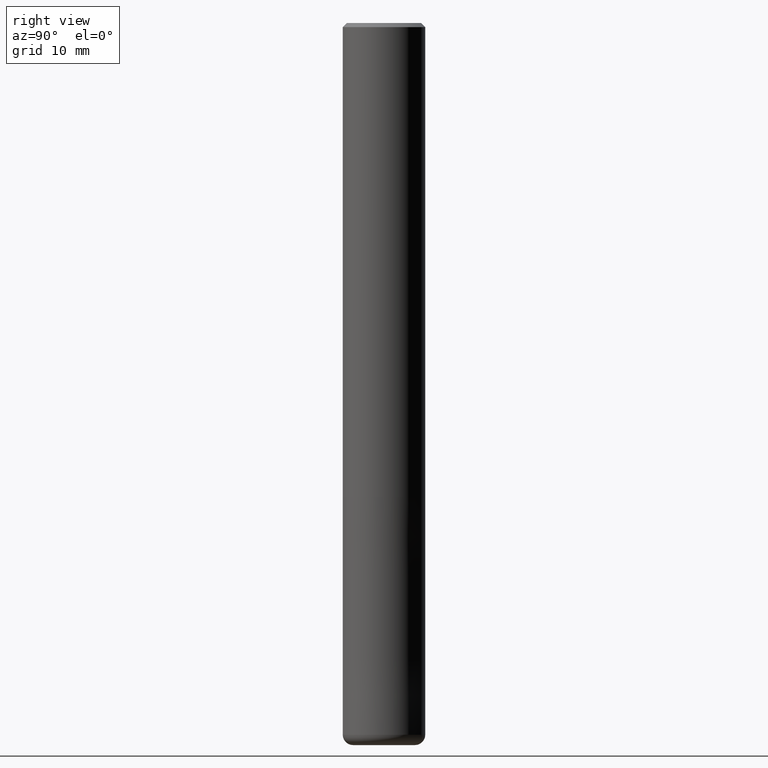
[diagram: clean part render]
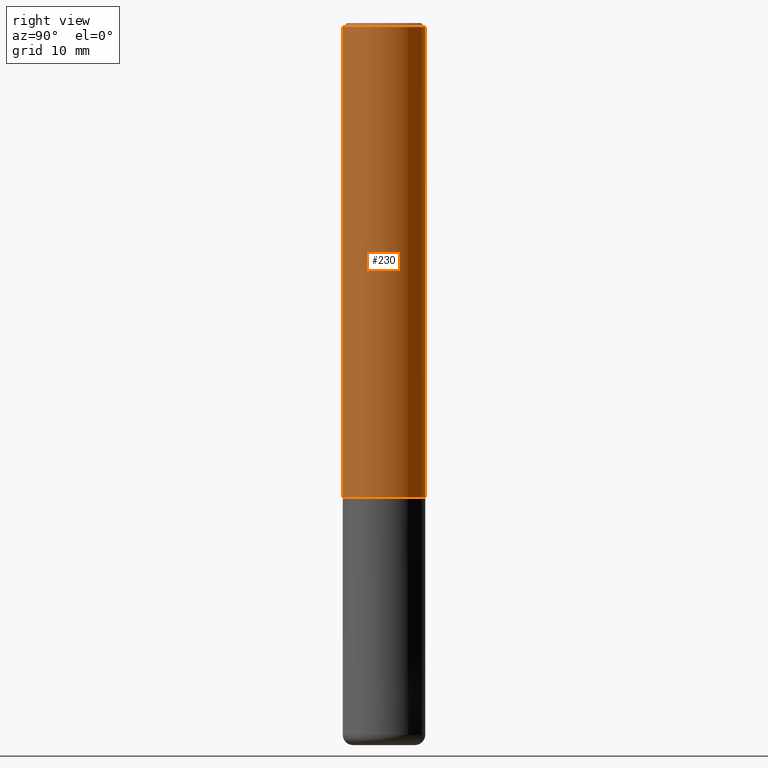
[diagram: same view with one face highlighted and labeled with its STEP entity id]
A machine part, right view. The second image highlights one B-rep face of the part: STEP entity #230.
In plain terms, the highlighted cylindrical surface (partial cylindrical patch) has radius 4 mm, axis along (-0, -0, 1).
Its self-contained STEP definition (entity closure, byte-faithful):
#104=EDGE_CURVE('',#182,#156,#265,.T.);
#118=EDGE_CURVE('',#156,#146,#279,.T.);
#138=VERTEX_POINT('',#302);
#146=VERTEX_POINT('',#312);
#156=VERTEX_POINT('',#322);
#166=EDGE_CURVE('',#138,#146,#334,.T.);
#182=VERTEX_POINT('',#352);
#184=EDGE_CURVE('',#138,#182,#354,.T.);
#230=ADVANCED_FACE('',(#406),#407,.T.);
#265=CIRCLE('',#439,4.0);
#279=LINE('',#457,#458);
#302=CARTESIAN_POINT('',(0.0,4.0,-0.399999999999999));
#312=CARTESIAN_POINT('',(4.89842541528951E-016,-4.0,-0.399999999999999));
#322=CARTESIAN_POINT('',(4.89842541528951E-016,-4.0,-46.0));
#334=CIRCLE('',#524,4.0);
#352=CARTESIAN_POINT('',(0.0,4.0,-46.0));
#354=LINE('',#551,#552);
#406=FACE_OUTER_BOUND('',#617,.T.);
#407=CYLINDRICAL_SURFACE('',#618,4.0);
#439=AXIS2_PLACEMENT_3D('',#640,#641,#642);
#457=CARTESIAN_POINT('',(4.89842541528951E-016,-4.0,-23.2));
#458=VECTOR('',#647,1.0);
#524=AXIS2_PLACEMENT_3D('',#725,#726,#727);
#551=CARTESIAN_POINT('',(-4.89842541528951E-016,4.0,-23.2));
#552=VECTOR('',#744,1.0);
#617=EDGE_LOOP('',(#814,#815,#816,#817));
#618=AXIS2_PLACEMENT_3D('',#818,#819,#820);
#640=CARTESIAN_POINT('',(0.0,0.0,-46.0));
#641=DIRECTION('',(0.0,0.0,-1.0));
#642=DIRECTION('',(0.0,1.0,0.0));
#647=DIRECTION('',(-0.0,-0.0,1.0));
#725=CARTESIAN_POINT('',(0.0,0.0,-0.399999999999999));
#726=DIRECTION('',(0.0,0.0,-1.0));
#727=DIRECTION('',(0.0,1.0,0.0));
#744=DIRECTION('',(0.0,0.0,-1.0));
#814=ORIENTED_EDGE('',*,*,#184,.F.);
#815=ORIENTED_EDGE('',*,*,#166,.T.);
#816=ORIENTED_EDGE('',*,*,#118,.F.);
#817=ORIENTED_EDGE('',*,*,#104,.F.);
#818=CARTESIAN_POINT('',(0.0,0.0,-23.2));
#819=DIRECTION('',(-0.0,-0.0,1.0));
#820=DIRECTION('',(0.0,1.0,0.0));